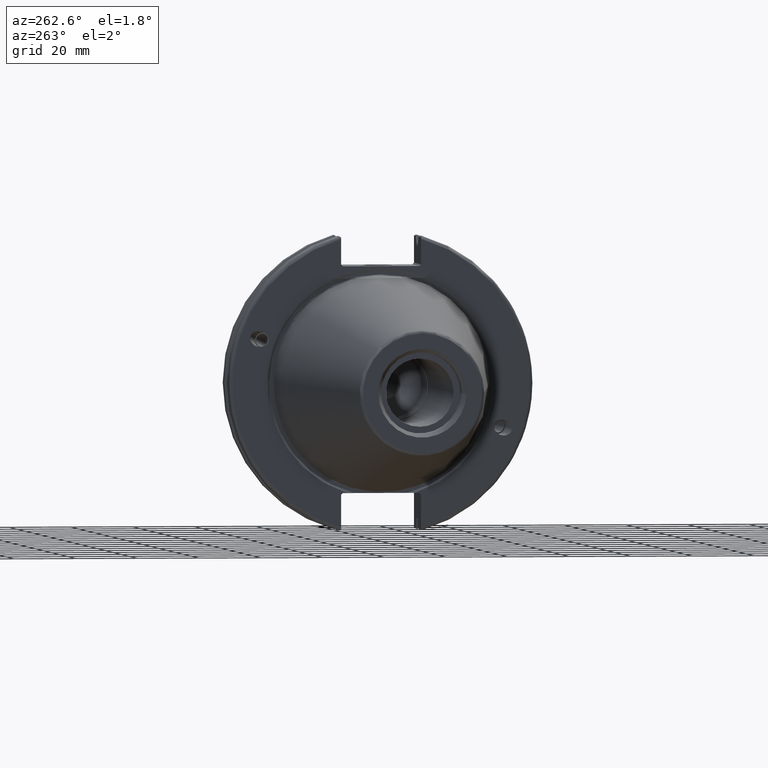
[diagram: clean part render]
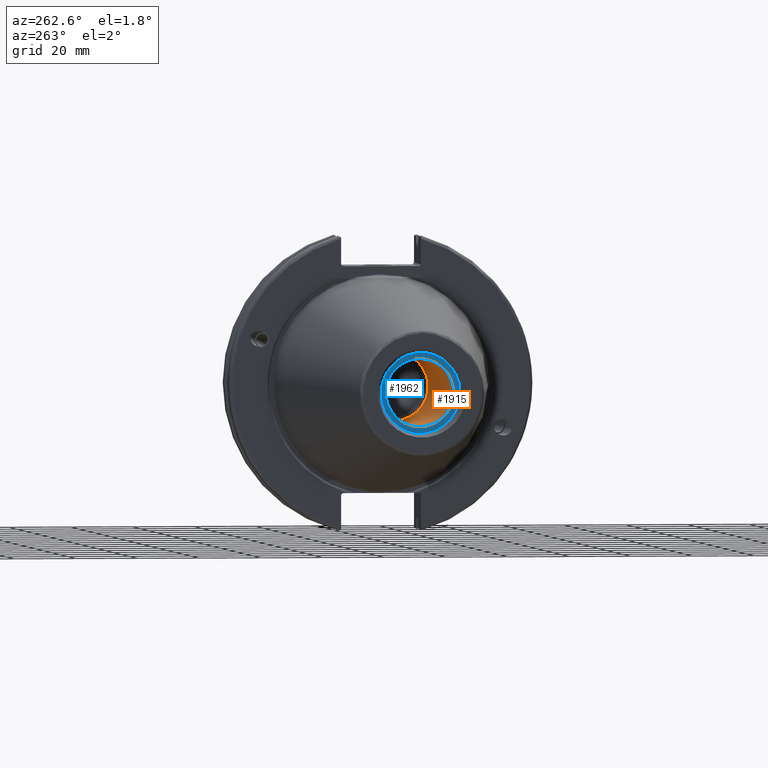
[diagram: same view with the hole feature highlighted: cylindrical wall and planar end face, labeled with their STEP entity ids]
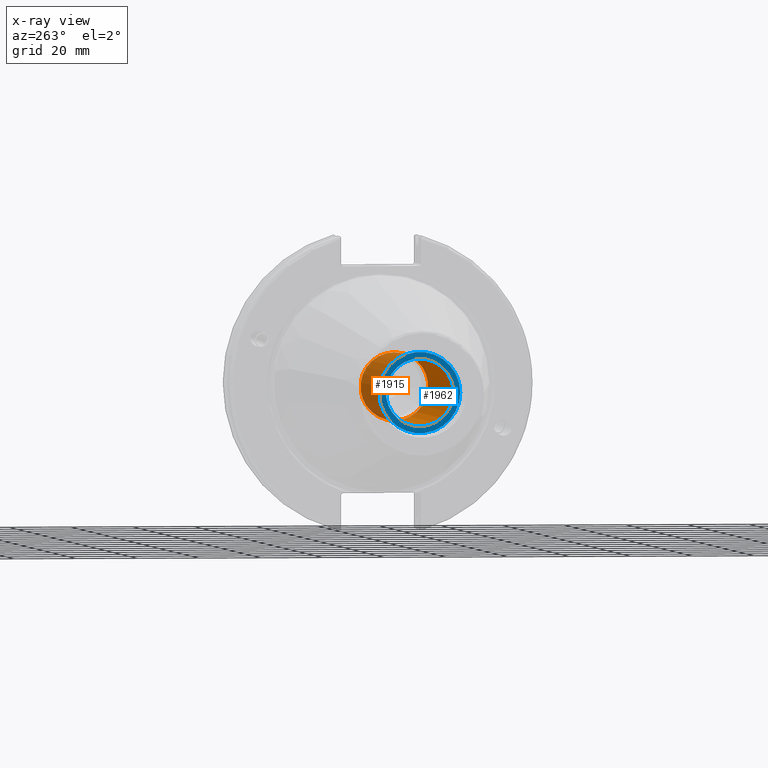
[diagram: x-ray of the same camera — body ghosted, the hole faces saturated]
A machine part, auxiliary view. The highlighted faces form one hole feature of diameter 21.971 mm: the cylindrical wall (entity #1915, orange) and its adjacent planar end face (entity #1962, blue) — they share a circular edge in the B-rep.
The next image is the same camera in x-ray (body ghosted, the hole faces saturated) — the bore reads through the body.
Wall:
#204=LINE('',#3566,#308);
#308=VECTOR('',#2608,10.9855);
#380=CYLINDRICAL_SURFACE('',#2147,10.9855);
#449=FACE_OUTER_BOUND('',#569,.T.);
#569=EDGE_LOOP('',(#1577,#1578,#1579,#1580));
#722=CIRCLE('',#2146,10.9855);
#723=CIRCLE('',#2148,10.9855);
#890=VERTEX_POINT('',#3560);
#891=VERTEX_POINT('',#3564);
#1137=EDGE_CURVE('',#890,#890,#722,.T.);
#1139=EDGE_CURVE('',#891,#891,#723,.T.);
#1140=EDGE_CURVE('',#891,#890,#204,.T.);
#1577=ORIENTED_EDGE('',*,*,#1139,.F.);
#1578=ORIENTED_EDGE('',*,*,#1140,.T.);
#1579=ORIENTED_EDGE('',*,*,#1137,.F.);
#1580=ORIENTED_EDGE('',*,*,#1140,.F.);
#1915=ADVANCED_FACE('',(#449),#380,.F.);
#2146=AXIS2_PLACEMENT_3D('',#3561,#2601,#2602);
#2147=AXIS2_PLACEMENT_3D('',#3563,#2604,#2605);
#2148=AXIS2_PLACEMENT_3D('',#3565,#2606,#2607);
#2601=DIRECTION('center_axis',(-1.,0.,0.));
#2602=DIRECTION('ref_axis',(0.,0.,1.));
#2604=DIRECTION('center_axis',(-1.,0.,0.));
#2605=DIRECTION('ref_axis',(0.,0.,1.));
#2606=DIRECTION('center_axis',(1.,0.,0.));
#2607=DIRECTION('ref_axis',(0.,0.,1.));
#2608=DIRECTION('',(1.,0.,0.));
#3560=CARTESIAN_POINT('',(-31.6,-1.34533574120333E-15,-10.9855));
#3561=CARTESIAN_POINT('Origin',(-31.6,0.,0.));
#3563=CARTESIAN_POINT('Origin',(-66.6,0.,0.));
#3564=CARTESIAN_POINT('',(-95.25,1.34533574120333E-15,-10.9855));
#3565=CARTESIAN_POINT('Origin',(-95.25,0.,0.));
#3566=CARTESIAN_POINT('',(-66.6,-1.34533574120333E-15,-10.9855));
End face:
#92=FACE_BOUND('',#622,.T.);
#130=PLANE('',#2225);
#496=FACE_OUTER_BOUND('',#621,.T.);
#621=EDGE_LOOP('',(#1831));
#622=EDGE_LOOP('',(#1832));
#723=CIRCLE('',#2148,10.9855);
#754=CIRCLE('',#2226,13.1);
#891=VERTEX_POINT('',#3564);
#951=VERTEX_POINT('',#3893);
#1139=EDGE_CURVE('',#891,#891,#723,.T.);
#1245=EDGE_CURVE('',#951,#951,#754,.T.);
#1831=ORIENTED_EDGE('',*,*,#1245,.F.);
#1832=ORIENTED_EDGE('',*,*,#1139,.T.);
#1962=ADVANCED_FACE('',(#496,#92),#130,.T.);
#2148=AXIS2_PLACEMENT_3D('',#3565,#2606,#2607);
#2225=AXIS2_PLACEMENT_3D('',#3892,#2809,#2810);
#2226=AXIS2_PLACEMENT_3D('',#3894,#2811,#2812);
#2606=DIRECTION('center_axis',(1.,0.,0.));
#2607=DIRECTION('ref_axis',(0.,0.,1.));
#2809=DIRECTION('center_axis',(-1.,0.,0.));
#2810=DIRECTION('ref_axis',(0.,0.,1.));
#2811=DIRECTION('center_axis',(1.,0.,0.));
#2812=DIRECTION('ref_axis',(0.,0.,-1.));
#3564=CARTESIAN_POINT('',(-95.25,1.34533574120333E-15,-10.9855));
#3565=CARTESIAN_POINT('Origin',(-95.25,0.,0.));
#3892=CARTESIAN_POINT('Origin',(-95.25,13.1,0.));
#3893=CARTESIAN_POINT('',(-95.25,-13.1,-1.60428730688303E-15));
#3894=CARTESIAN_POINT('Origin',(-95.25,0.,0.));